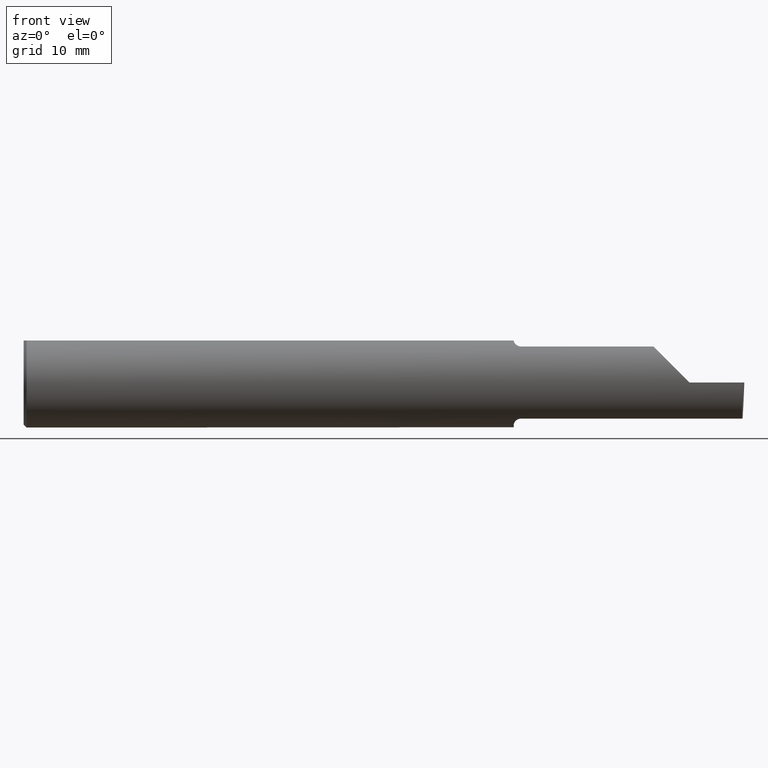
[diagram: clean part render]
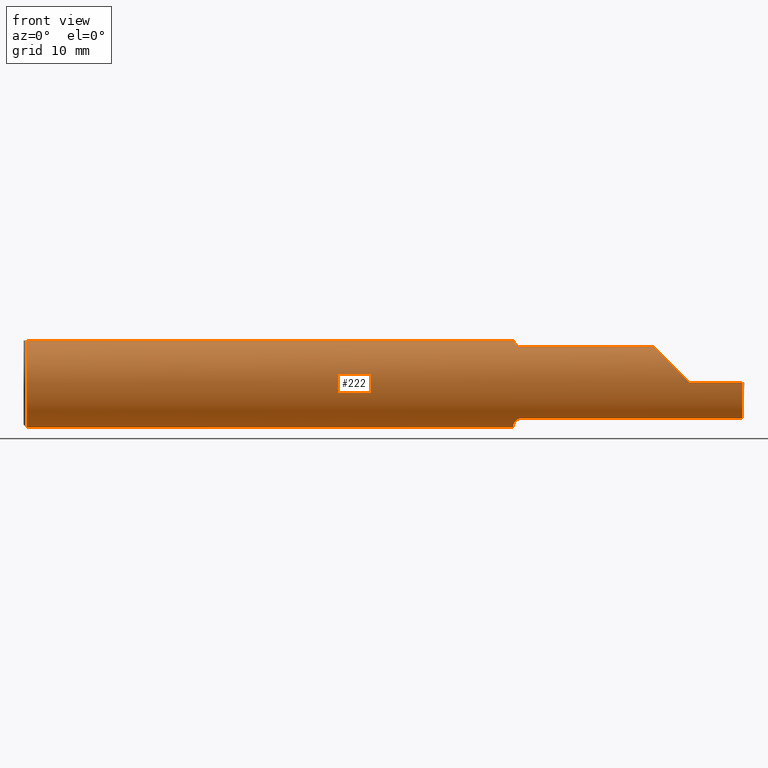
[diagram: same view with one face highlighted and labeled with its STEP entity id]
A machine part, front view. The second image highlights one B-rep face of the part: STEP entity #222.
In plain terms, the highlighted cylindrical surface (partial cylindrical patch) has radius 3.9649 mm, axis along (-1, -0, -0).
Its self-contained STEP definition (entity closure, byte-faithful):
#21 = ORIENTED_EDGE ( 'NONE', *, *, #618, .F. ) ;
#29 = VERTEX_POINT ( 'NONE', #171 ) ;
#31 = VERTEX_POINT ( 'NONE', #742 ) ;
#36 = CIRCLE ( 'NONE', #45, 0.1560999999999999888 ) ;
#38 = CARTESIAN_POINT ( 'NONE',  ( 2.492005481760536156, -0.1336908980339254205, -0.09488266708345013956 ) ) ;
#41 = EDGE_CURVE ( 'NONE', #572, #189, #630, .T. ) ;
#45 = AXIS2_PLACEMENT_3D ( 'NONE', #374, #680, #621 ) ;
#49 = VERTEX_POINT ( 'NONE', #793 ) ;
#59 = CARTESIAN_POINT ( 'NONE',  ( 1.710315048287043505, -0.08709553534231927185, -0.1295667287130568834 ) ) ;
#60 = CARTESIAN_POINT ( 'NONE',  ( 1.699999999999999734, -0.06156212810510099803, 0.1436177747480845701 ) ) ;
#65 = CARTESIAN_POINT ( 'NONE',  ( 2.185081329771846992, -0.09360841750841733533, 0.1249186702281521039 ) ) ;
#66 = EDGE_CURVE ( 'NONE', #469, #507, #636, .T. ) ;
#73 = CARTESIAN_POINT ( 'NONE',  ( 2.310000000000000053, -0.1560999999999999888, 2.326828918379970872E-17 ) ) ;
#75 = VERTEX_POINT ( 'NONE', #65 ) ;
#78 = DIRECTION ( 'NONE',  ( 1.000000000000000000, 0.000000000000000000, 0.000000000000000000 ) ) ;
#87 = CARTESIAN_POINT ( 'NONE',  ( 1.720361275910303522, -0.09360841750841747411, -0.1249186702281520345 ) ) ;
#89 = EDGE_CURVE ( 'NONE', #338, #572, #612, .T. ) ;
#94 = DIRECTION ( 'NONE',  ( 0.000000000000000000, 0.000000000000000000, -1.000000000000000000 ) ) ;
#97 = ORIENTED_EDGE ( 'NONE', *, *, #267, .F. ) ;
#99 = ORIENTED_EDGE ( 'NONE', *, *, #436, .F. ) ;
#101 = CARTESIAN_POINT ( 'NONE',  ( 0.009999999999999825001, 0.000000000000000000, -0.1560999999999999888 ) ) ;
#102 = ORIENTED_EDGE ( 'NONE', *, *, #41, .F. ) ;
#105 = EDGE_CURVE ( 'NONE', #507, #165, #36, .T. ) ;
#115 = AXIS2_PLACEMENT_3D ( 'NONE', #188, #185, #180 ) ;
#117 = CARTESIAN_POINT ( 'NONE',  ( 1.705056522840237898, -0.07943464720522702693, 0.1344128205797975040 ) ) ;
#133 = ORIENTED_EDGE ( 'NONE', *, *, #186, .T. ) ;
#136 = CARTESIAN_POINT ( 'NONE',  ( 1.699999999999999956, -0.05502817059483729872, -0.1460791239054556601 ) ) ;
#143 = CARTESIAN_POINT ( 'NONE',  ( 2.215117332916549220, -0.1336908980339253650, 0.09488266708345012568 ) ) ;
#152 = CARTESIAN_POINT ( 'NONE',  ( 2.093230820000000048, -0.09360841750841740472, 0.1249186702281520484 ) ) ;
#165 = VERTEX_POINT ( 'NONE', #270 ) ;
#171 = CARTESIAN_POINT ( 'NONE',  ( 1.724999999999999867, -0.09360841750841744635, -0.1249186702281520484 ) ) ;
#180 = DIRECTION ( 'NONE',  ( 0.000000000000000000, 0.000000000000000000, -1.000000000000000000 ) ) ;
#185 = DIRECTION ( 'NONE',  ( 1.000000000000000000, 0.000000000000000000, 0.000000000000000000 ) ) ;
#186 = EDGE_CURVE ( 'NONE', #31, #75, #619, .T. ) ;
#188 = CARTESIAN_POINT ( 'NONE',  ( 0.009999999999999825001, 0.000000000000000000, 0.000000000000000000 ) ) ;
#189 = VERTEX_POINT ( 'NONE', #697 ) ;
#194 = CARTESIAN_POINT ( 'NONE',  ( 2.259912409421231949, -0.1560999999999999333, 0.05008759057876778498 ) ) ;
#198 = CARTESIAN_POINT ( 'NONE',  ( 1.712810002172886481, -0.08909999999996051634, -0.1281733201567833713 ) ) ;
#199 = ORIENTED_EDGE ( 'NONE', *, *, #89, .F. ) ;
#213 = DIRECTION ( 'NONE',  ( 1.000000000000000000, 0.000000000000000000, 0.000000000000000000 ) ) ;
#215 = EDGE_CURVE ( 'NONE', #469, #501, #442, .T. ) ;
#218 = CIRCLE ( 'NONE', #659, 0.1560999999999999888 ) ;
#222 = ADVANCED_FACE ( 'NONE', ( #449 ), #340, .T. ) ;
#229 = AXIS2_PLACEMENT_3D ( 'NONE', #581, #275, #401 ) ;
#261 = ORIENTED_EDGE ( 'NONE', *, *, #432, .T. ) ;
#267 = EDGE_CURVE ( 'NONE', #29, #281, #413, .T. ) ;
#270 = CARTESIAN_POINT ( 'NONE',  ( 0.009999999999999825001, 0.05497272050753933964, 0.1460999999999998689 ) ) ;
#271 = CARTESIAN_POINT ( 'NONE',  ( 3.749399456654646757E-32, -0.1560999999999999333, 3.061616997868383634E-16 ) ) ;
#275 = DIRECTION ( 'NONE',  ( -1.000000000000000000, -0.000000000000000000, -0.000000000000000000 ) ) ;
#281 = VERTEX_POINT ( 'NONE', #641 ) ;
#307 = CARTESIAN_POINT ( 'NONE',  ( 1.703785422859118270, -0.07659497035394371989, 0.1360571150960168674 ) ) ;
#311 = CARTESIAN_POINT ( 'NONE',  ( 1.699999999999997735, -0.06152246774674061114, -0.1436327148497733852 ) ) ;
#312 = CARTESIAN_POINT ( 'NONE',  ( 1.708314215045238615, -0.08466760255782121436, 0.1311795204669789217 ) ) ;
#323 = DIRECTION ( 'NONE',  ( 1.000000000000000000, 0.000000000000000000, 0.000000000000000000 ) ) ;
#330 = CIRCLE ( 'NONE', #394, 0.1560999999999999888 ) ;
#338 = VERTEX_POINT ( 'NONE', #702 ) ;
#340 = CYLINDRICAL_SURFACE ( 'NONE', #229, 0.1560999999999999888 ) ;
#346 = CARTESIAN_POINT ( 'NONE',  ( 2.494928209896765114, -0.1560999999999999888, 0.000000000000000000 ) ) ;
#347 = ORIENTED_EDGE ( 'NONE', *, *, #384, .T. ) ;
#351 = CARTESIAN_POINT ( 'NONE',  ( 1.699999999999999956, 0.000000000000000000, 0.000000000000000000 ) ) ;
#356 = EDGE_CURVE ( 'NONE', #189, #75, #698, .T. ) ;
#363 = CARTESIAN_POINT ( 'NONE',  ( 1.712810002172222568, -0.08909999999984938301, 0.1281733201569305869 ) ) ;
#364 = EDGE_CURVE ( 'NONE', #501, #338, #218, .T. ) ;
#373 = CARTESIAN_POINT ( 'NONE',  ( 1.708312875394041752, -0.08466547365232439393, -0.1311808389156051691 ) ) ;
#374 = CARTESIAN_POINT ( 'NONE',  ( 0.009999999999999825001, 0.000000000000000000, 0.000000000000000000 ) ) ;
#384 = EDGE_CURVE ( 'NONE', #513, #31, #649, .T. ) ;
#389 = CARTESIAN_POINT ( 'NONE',  ( 2.185081329771846992, -0.09360841750841733533, 0.1249186702281521039 ) ) ;
#394 = AXIS2_PLACEMENT_3D ( 'NONE', #351, #783, #409 ) ;
#401 = DIRECTION ( 'NONE',  ( 0.000000000000000000, 0.000000000000000000, 1.000000000000000000 ) ) ;
#402 = ORIENTED_EDGE ( 'NONE', *, *, #364, .F. ) ;
#408 = ORIENTED_EDGE ( 'NONE', *, *, #66, .T. ) ;
#409 = DIRECTION ( 'NONE',  ( 0.000000000000000000, 0.000000000000000000, -1.000000000000000000 ) ) ;
#413 = B_SPLINE_CURVE_WITH_KNOTS ( 'NONE', 3,
 ( #771, #87, #755, #198 ),
 .UNSPECIFIED., .F., .F.,
 ( 4, 4 ),
 ( 1.958690481381664333E-07, 0.0003463854958010611205 ),
 .UNSPECIFIED. ) ;
#419 = CARTESIAN_POINT ( 'NONE',  ( 2.494928209896765114, -0.1560999999999999888, 0.000000000000000000 ) ) ;
#420 = VECTOR ( 'NONE', #516, 39.37007874015748143 ) ;
#423 = CARTESIAN_POINT ( 'NONE',  ( 1.712810002172886481, -0.08909999999996051634, -0.1281733201567833713 ) ) ;
#424 = CARTESIAN_POINT ( 'NONE',  ( 1.720364775055372775, -0.09360841750841747411, 0.1249186702281520345 ) ) ;
#430 = CARTESIAN_POINT ( 'NONE',  ( 1.712810002172222568, -0.08909999999984938301, 0.1281733201569305869 ) ) ;
#432 = EDGE_CURVE ( 'NONE', #49, #513, #787, .T. ) ;
#436 = EDGE_CURVE ( 'NONE', #587, #165, #472, .T. ) ;
#442 = LINE ( 'NONE', #627, #569 ) ;
#449 = FACE_OUTER_BOUND ( 'NONE', #794, .T. ) ;
#469 = VERTEX_POINT ( 'NONE', #586 ) ;
#472 = LINE ( 'NONE', #595, #700 ) ;
#481 = CARTESIAN_POINT ( 'NONE',  ( 2.491656083944432165, -0.09360841750841740472, -0.1249186702281520484 ) ) ;
#485 = CARTESIAN_POINT ( 'NONE',  ( 1.705057722617701055, -0.07943655142502265010, -0.1344116409581927740 ) ) ;
#491 = CARTESIAN_POINT ( 'NONE',  ( 2.093230820000000048, -0.09360841750841740472, -0.1249186702281520484 ) ) ;
#501 = VERTEX_POINT ( 'NONE', #528 ) ;
#507 = VERTEX_POINT ( 'NONE', #101 ) ;
#508 = EDGE_CURVE ( 'NONE', #737, #587, #330, .T. ) ;
#509 = ORIENTED_EDGE ( 'NONE', *, *, #356, .F. ) ;
#513 = VERTEX_POINT ( 'NONE', #346 ) ;
#516 = DIRECTION ( 'NONE',  ( -1.000000000000000000, -0.000000000000000000, -0.000000000000000000 ) ) ;
#527 = VECTOR ( 'NONE', #674, 39.37007874015748143 ) ;
#528 = CARTESIAN_POINT ( 'NONE',  ( 1.699999999999999956, -0.05497272050753934658, 0.1460999999999998689 ) ) ;
#544 = CARTESIAN_POINT ( 'NONE',  ( 1.712810002172222568, -0.08909999999984938301, 0.1281733201569305869 ) ) ;
#551 = CARTESIAN_POINT ( 'NONE',  ( 1.724999999999999867, -0.09360841750841744635, 0.1249186702281520484 ) ) ;
#561 = VECTOR ( 'NONE', #213, 39.37007874015748143 ) ;
#569 = VECTOR ( 'NONE', #323, 39.37007874015748143 ) ;
#572 = VERTEX_POINT ( 'NONE', #430 ) ;
#579 = ORIENTED_EDGE ( 'NONE', *, *, #215, .F. ) ;
#581 = CARTESIAN_POINT ( 'NONE',  ( 0.000000000000000000, 0.000000000000000000, 0.000000000000000000 ) ) ;
#586 = CARTESIAN_POINT ( 'NONE',  ( 0.009999999999999825001, -0.05497272050753933964, 0.1460999999999998689 ) ) ;
#587 = VERTEX_POINT ( 'NONE', #805 ) ;
#595 = CARTESIAN_POINT ( 'NONE',  ( 0.000000000000000000, 0.05497272050753933964, 0.1460999999999998689 ) ) ;
#601 = CARTESIAN_POINT ( 'NONE',  ( 2.493178846255211134, -0.1561000000000000165, -0.05008759057876781273 ) ) ;
#612 = B_SPLINE_CURVE_WITH_KNOTS ( 'NONE', 3,
 ( #616, #60, #671, #307, #117, #312, #662, #544 ),
 .UNSPECIFIED., .F., .F.,
 ( 4, 2, 2, 4 ),
 ( 2.042507625476046020E-06, 0.0005263182385139166366, 0.0007884561039581367914, 0.001050593969402356838 ),
 .UNSPECIFIED. ) ;
#616 = CARTESIAN_POINT ( 'NONE',  ( 1.699999999999999956, -0.05502817059483729872, 0.1460791239054556601 ) ) ;
#618 = EDGE_CURVE ( 'NONE', #49, #29, #740, .T. ) ;
#619 =( BOUNDED_CURVE ( )  B_SPLINE_CURVE ( 3, ( #73, #194, #143, #389 ),
 .UNSPECIFIED., .F., .F. ) 
 B_SPLINE_CURVE_WITH_KNOTS ( ( 4, 4 ),
 ( 4.712388980384689674, 5.640097190903854418 ),
 .UNSPECIFIED. ) 
 CURVE ( )  GEOMETRIC_REPRESENTATION_ITEM ( )  RATIONAL_B_SPLINE_CURVE ( ( 1.000000000000000000, 0.9295565493311498395, 0.9295565493311498395, 1.000000000000000000 ) ) 
 REPRESENTATION_ITEM ( '' )  );
#621 = DIRECTION ( 'NONE',  ( 0.000000000000000000, 0.000000000000000000, -1.000000000000000000 ) ) ;
#627 = CARTESIAN_POINT ( 'NONE',  ( 0.000000000000000000, -0.05497272050753933964, 0.1460999999999998689 ) ) ;
#630 = B_SPLINE_CURVE_WITH_KNOTS ( 'NONE', 3,
 ( #363, #675, #424, #551 ),
 .UNSPECIFIED., .F., .F.,
 ( 4, 4 ),
 ( 0.001050593969402356838, 0.001393966686689398441 ),
 .UNSPECIFIED. ) ;
#634 = ORIENTED_EDGE ( 'NONE', *, *, #508, .F. ) ;
#636 = CIRCLE ( 'NONE', #115, 0.1560999999999999888 ) ;
#641 = CARTESIAN_POINT ( 'NONE',  ( 1.712810002172886481, -0.08909999999996051634, -0.1281733201567833713 ) ) ;
#646 = CARTESIAN_POINT ( 'NONE',  ( 1.699999999999999956, 0.000000000000000000, 0.000000000000000000 ) ) ;
#649 = LINE ( 'NONE', #271, #420 ) ;
#659 = AXIS2_PLACEMENT_3D ( 'NONE', #646, #78, #94 ) ;
#661 = EDGE_CURVE ( 'NONE', #281, #737, #705, .T. ) ;
#662 = CARTESIAN_POINT ( 'NONE',  ( 1.710319203512565833, -0.08709887368156790655, 0.1295644080582773472 ) ) ;
#664 = CARTESIAN_POINT ( 'NONE',  ( 1.699999999999999956, -0.05502817059483729872, -0.1460791239054556601 ) ) ;
#671 = CARTESIAN_POINT ( 'NONE',  ( 1.700844056398637116, -0.06777540567362913548, 0.1407770456887920685 ) ) ;
#674 = DIRECTION ( 'NONE',  ( -1.000000000000000000, -0.000000000000000000, -0.000000000000000000 ) ) ;
#675 = CARTESIAN_POINT ( 'NONE',  ( 1.716072683443917946, -0.09172126259464272180, 0.1263511429915042672 ) ) ;
#678 = CARTESIAN_POINT ( 'NONE',  ( 1.700847904676645372, -0.06780574120017843209, -0.1407631332654325218 ) ) ;
#680 = DIRECTION ( 'NONE',  ( 1.000000000000000000, 0.000000000000000000, 0.000000000000000000 ) ) ;
#686 = ORIENTED_EDGE ( 'NONE', *, *, #661, .F. ) ;
#697 = CARTESIAN_POINT ( 'NONE',  ( 1.724999999999999867, -0.09360841750841744635, 0.1249186702281520484 ) ) ;
#698 = LINE ( 'NONE', #152, #561 ) ;
#700 = VECTOR ( 'NONE', #785, 39.37007874015748143 ) ;
#702 = CARTESIAN_POINT ( 'NONE',  ( 1.699999999999999956, -0.05502817059483729872, 0.1460791239054556601 ) ) ;
#705 = B_SPLINE_CURVE_WITH_KNOTS ( 'NONE', 3,
 ( #423, #59, #373, #485, #728, #678, #311, #664 ),
 .UNSPECIFIED., .F., .F.,
 ( 4, 2, 2, 4 ),
 ( 0.0003463854958010611205, 0.0006107451645895071654, 0.0008751048333779532645, 0.001403824170954850667 ),
 .UNSPECIFIED. ) ;
#728 = CARTESIAN_POINT ( 'NONE',  ( 1.703804698179399946, -0.07664326672408305896, -0.1360300949145557270 ) ) ;
#737 = VERTEX_POINT ( 'NONE', #136 ) ;
#740 = LINE ( 'NONE', #491, #527 ) ;
#742 = CARTESIAN_POINT ( 'NONE',  ( 2.310000000000000053, -0.1560999999999999888, 2.326828918379970872E-17 ) ) ;
#750 = ORIENTED_EDGE ( 'NONE', *, *, #105, .T. ) ;
#755 = CARTESIAN_POINT ( 'NONE',  ( 1.716077244708472893, -0.09172492714866087304, -0.1263485955677198513 ) ) ;
#771 = CARTESIAN_POINT ( 'NONE',  ( 1.724999999999999867, -0.09360841750841744635, -0.1249186702281520484 ) ) ;
#783 = DIRECTION ( 'NONE',  ( 1.000000000000000000, 0.000000000000000000, 0.000000000000000000 ) ) ;
#785 = DIRECTION ( 'NONE',  ( -1.000000000000000000, -0.000000000000000000, -0.000000000000000000 ) ) ;
#787 =( BOUNDED_CURVE ( )  B_SPLINE_CURVE ( 3, ( #481, #38, #601, #419 ),
 .UNSPECIFIED., .F., .F. ) 
 B_SPLINE_CURVE_WITH_KNOTS ( ( 4, 4 ),
 ( 0.1796232990704038912, 1.107331509589568608 ),
 .UNSPECIFIED. ) 
 CURVE ( )  GEOMETRIC_REPRESENTATION_ITEM ( )  RATIONAL_B_SPLINE_CURVE ( ( 1.000000000000000000, 0.9295565493311498395, 0.9295565493311498395, 1.000000000000000000 ) ) 
 REPRESENTATION_ITEM ( '' )  );
#793 = CARTESIAN_POINT ( 'NONE',  ( 2.491656083944432165, -0.09360841750841740472, -0.1249186702281520484 ) ) ;
#794 = EDGE_LOOP ( 'NONE', ( #21, #261, #347, #133, #509, #102, #199, #402, #579, #408, #750, #99, #634, #686, #97 ) ) ;
#805 = CARTESIAN_POINT ( 'NONE',  ( 1.699999999999999956, 0.05497272050753933964, 0.1460999999999998689 ) ) ;